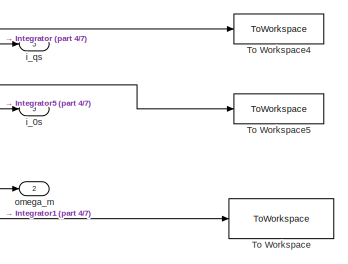
[diagram: root canvas - part 1/7, top right region]
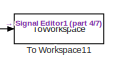
[diagram: root canvas - part 2/7, top left region]
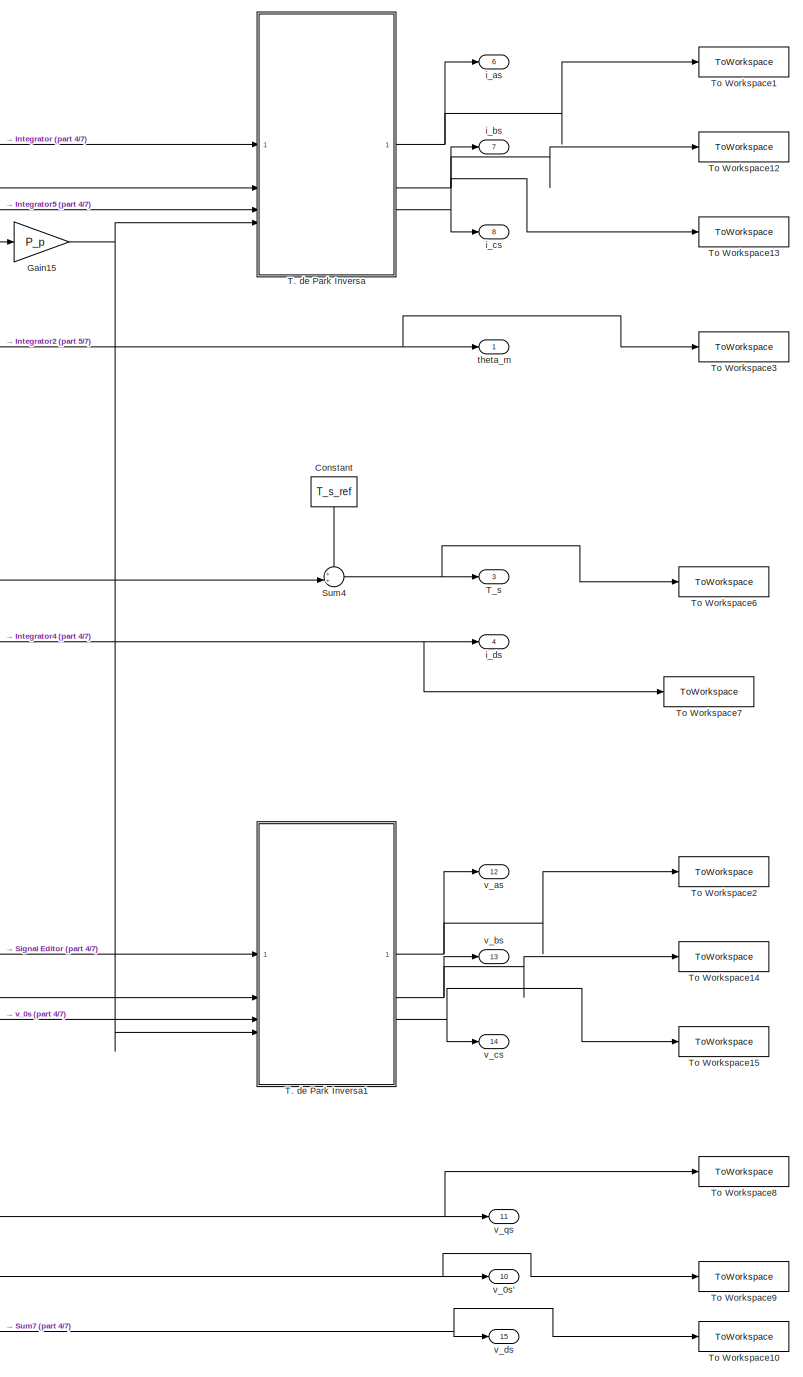
[diagram: root canvas - part 3/7, right side, full height]
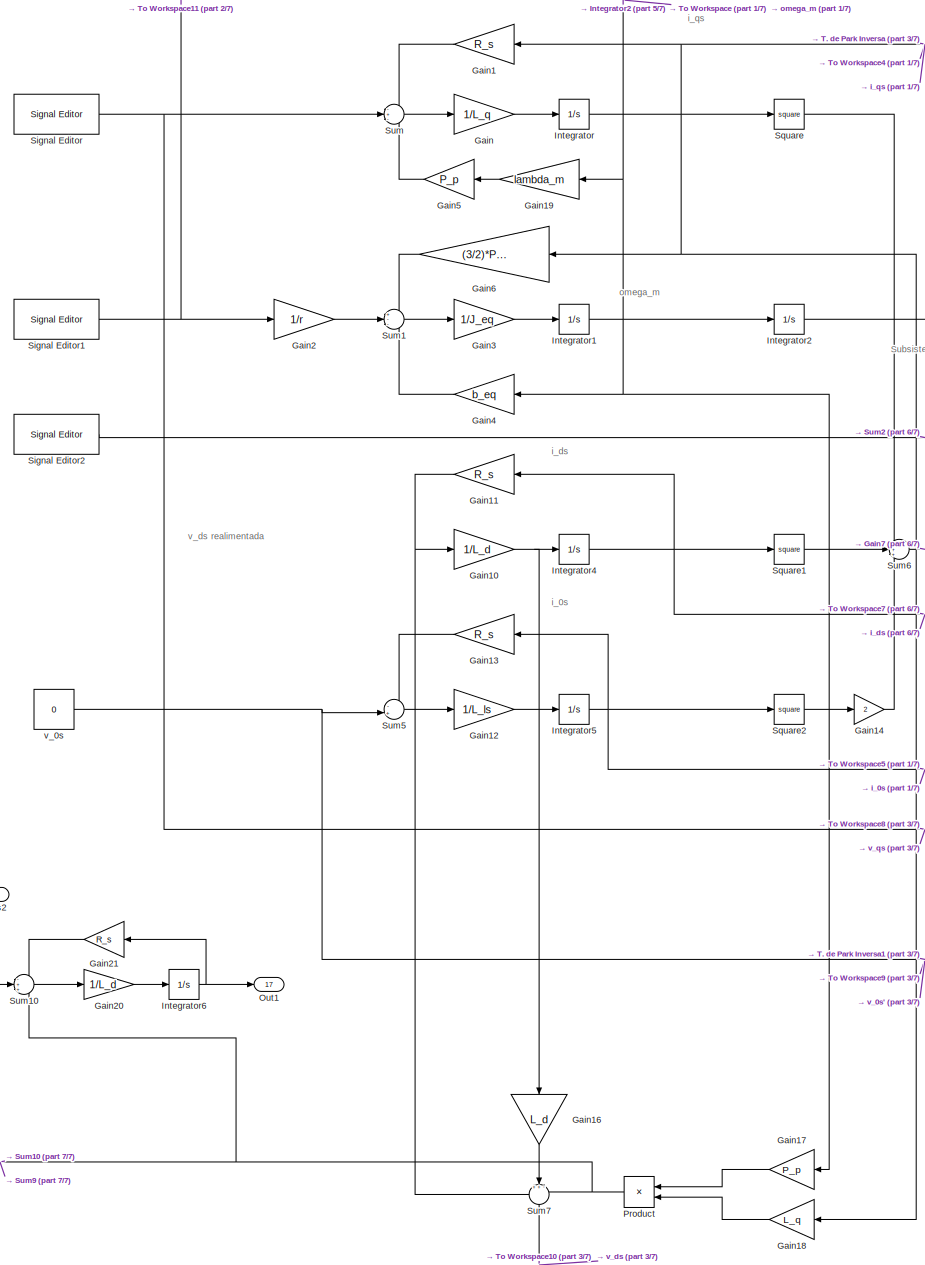
[diagram: root canvas - part 4/7, left side, full height]
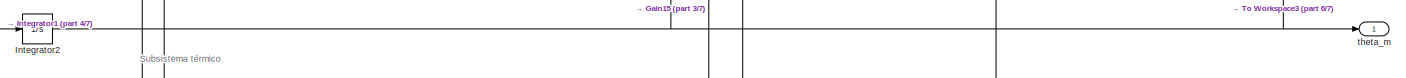
[diagram: root canvas - part 5/7, central region]
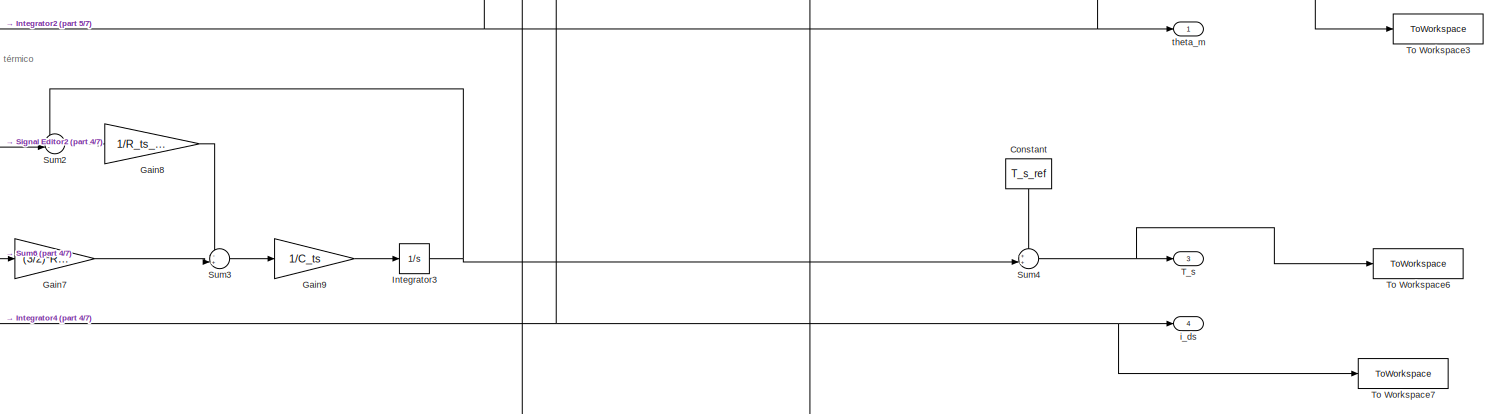
[diagram: root canvas - part 6/7, middle right region]
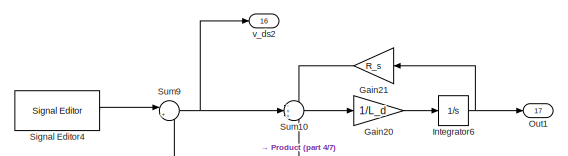
[diagram: root canvas - part 7/7, bottom left region]
MODEL slx_2c4f7311a23b
KIND model
CONFIG AbsTol = auto
CONFIG EnableMultiTasking = off
CONFIG FixedStep = auto
CONFIG MaxStep = 1e-4
CONFIG MinStep = auto
CONFIG RelTol = 1e-3
CONFIG SampleTimeConstraint = Unconstrained
CONFIG SolverName = VariableStepAuto
CONFIG StartTime = 0.0
CONFIG StopTime = 1
BLOCK [Constant] Constant
  NameLocation = left
  Value = T_s_ref
BLOCK [Gain] Gain
  Gain = 1/L_q
BLOCK [Gain] Gain1
  Gain = R_s
BLOCK [Gain] Gain10
  Gain = 1/L_d
BLOCK [Gain] Gain11
  Gain = R_s
BLOCK [Gain] Gain12
  Gain = 1/L_ls
BLOCK [Gain] Gain13
  Gain = R_s
BLOCK [Gain] Gain14
  Gain = 2
BLOCK [Gain] Gain15
  Gain = P_p
BLOCK [Gain] Gain16
  Gain = L_d
  NameLocation = left
BLOCK [Gain] Gain17
  Gain = P_p
  NameLocation = top
BLOCK [Gain] Gain18
  Gain = L_q
  NameLocation = top
BLOCK [Gain] Gain19
  Gain = lambda_m
BLOCK [Gain] Gain2
  Gain = 1/r
BLOCK [Gain] Gain20
  Gain = 1/L_d
BLOCK [Gain] Gain21
  Gain = R_s
BLOCK [Gain] Gain3
  Gain = 1/J_eq
BLOCK [Gain] Gain4
  Gain = b_eq
BLOCK [Gain] Gain5
  Gain = P_p
BLOCK [Gain] Gain6
  Gain = (3/2)*P_p*lambda_m
BLOCK [Gain] Gain7
  Gain = (3/2)*R_s
BLOCK [Gain] Gain8
  Gain = 1/R_ts_amb
BLOCK [Gain] Gain9
  Gain = 1/C_ts
BLOCK [Integrator] Integrator
BLOCK [Integrator] Integrator1
BLOCK [Integrator] Integrator2
BLOCK [Integrator] Integrator3
BLOCK [Integrator] Integrator4
  InitialCondition = 0.5
BLOCK [Integrator] Integrator5
BLOCK [Integrator] Integrator6
BLOCK [Outport] Out1
  Port = 17
BLOCK [Product] Product
BLOCK [Reference] Signal Editor  REF=SignalEditorBlockLib/Signal Editor
  LibrarySourceBlock = simulink/Sources/Signal Editor
  SourceBlock = SignalEditorBlockLib/Signal Editor
  SourceType = SignalEditor
  UserDataPersistent = on
BLOCK [Reference] Signal Editor1  REF=SignalEditorBlockLib/Signal Editor
  LibrarySourceBlock = simulink/Sources/Signal Editor
  SourceBlock = SignalEditorBlockLib/Signal Editor
  SourceType = SignalEditor
  UserDataPersistent = on
BLOCK [Reference] Signal Editor2  REF=SignalEditorBlockLib/Signal Editor
  LibrarySourceBlock = simulink/Sources/Signal Editor
  SourceBlock = SignalEditorBlockLib/Signal Editor
  SourceType = SignalEditor
  UserDataPersistent = on
BLOCK [Reference] Signal Editor4  REF=SignalEditorBlockLib/Signal Editor
  LibrarySourceBlock = simulink/Sources/Signal Editor
  SourceBlock = SignalEditorBlockLib/Signal Editor
  SourceType = SignalEditor
  UserDataPersistent = on
BLOCK [Math] Square
  Operator = square
BLOCK [Math] Square1
  Operator = square
BLOCK [Math] Square2
  Operator = square
BLOCK [Sum] Sum
  Inputs = -+-
BLOCK [Sum] Sum1
  Inputs = +--
BLOCK [Sum] Sum10
  Inputs = -++
BLOCK [Sum] Sum2
  Inputs = +-|
BLOCK [Sum] Sum3
  Inputs = -+|
BLOCK [Sum] Sum4
  Inputs = ++|
BLOCK [Sum] Sum5
  Inputs = -+|
BLOCK [Sum] Sum6
  Inputs = +++
BLOCK [Sum] Sum7
  Inputs = ++-
  NameLocation = left
BLOCK [Sum] Sum9
  Inputs = |+-
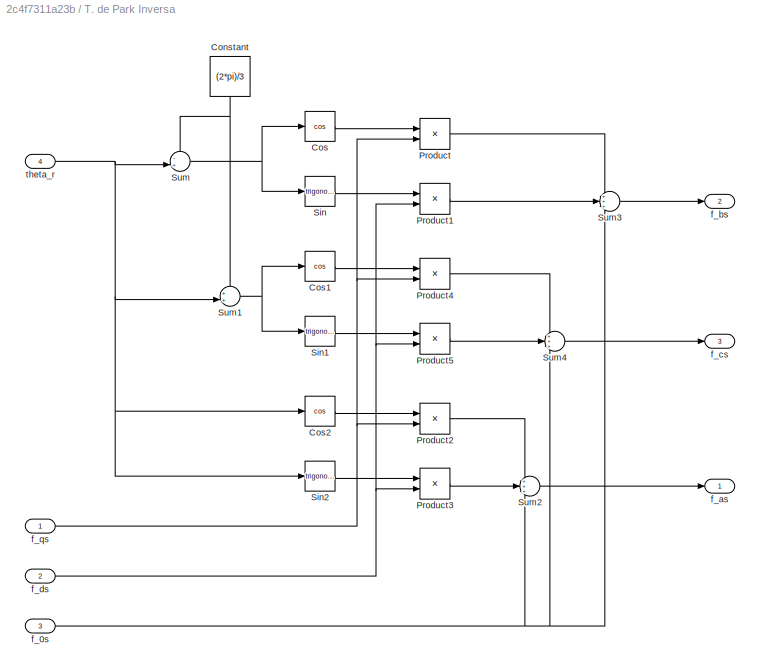
BLOCK [SubSystem] T. de Park Inversa
BLOCK [Constant] T. de Park Inversa/Constant
  NameLocation = left
  Value = (2*pi)/3
BLOCK [Trigonometry] T. de Park Inversa/Cos
  Operator = cos
BLOCK [Trigonometry] T. de Park Inversa/Cos1
  Operator = cos
BLOCK [Trigonometry] T. de Park Inversa/Cos2
  Operator = cos
BLOCK [Product] T. de Park Inversa/Product
BLOCK [Product] T. de Park Inversa/Product1
BLOCK [Product] T. de Park Inversa/Product2
BLOCK [Product] T. de Park Inversa/Product3
BLOCK [Product] T. de Park Inversa/Product4
BLOCK [Product] T. de Park Inversa/Product5
BLOCK [Trigonometry] T. de Park Inversa/Sin
BLOCK [Trigonometry] T. de Park Inversa/Sin1
BLOCK [Trigonometry] T. de Park Inversa/Sin2
BLOCK [Sum] T. de Park Inversa/Sum
  Inputs = -+|
BLOCK [Sum] T. de Park Inversa/Sum1
  Inputs = ++|
BLOCK [Sum] T. de Park Inversa/Sum2
  Inputs = +++
BLOCK [Sum] T. de Park Inversa/Sum3
  Inputs = +++
BLOCK [Sum] T. de Park Inversa/Sum4
  Inputs = +++
BLOCK [Inport] T. de Park Inversa/f_0s
  Port = 3
BLOCK [Outport] T. de Park Inversa/f_as
BLOCK [Outport] T. de Park Inversa/f_bs
  Port = 2
BLOCK [Outport] T. de Park Inversa/f_cs
  Port = 3
BLOCK [Inport] T. de Park Inversa/f_ds
  Port = 2
BLOCK [Inport] T. de Park Inversa/f_qs
BLOCK [Inport] T. de Park Inversa/theta_r
  Port = 4
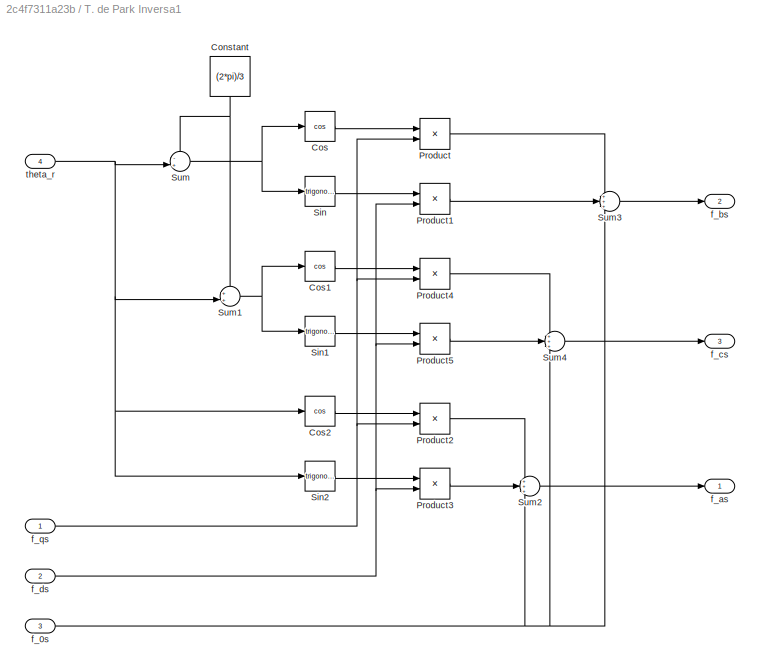
BLOCK [SubSystem] T. de Park Inversa1
BLOCK [Constant] T. de Park Inversa1/Constant
  NameLocation = left
  Value = (2*pi)/3
BLOCK [Trigonometry] T. de Park Inversa1/Cos
  Operator = cos
BLOCK [Trigonometry] T. de Park Inversa1/Cos1
  Operator = cos
BLOCK [Trigonometry] T. de Park Inversa1/Cos2
  Operator = cos
BLOCK [Product] T. de Park Inversa1/Product
BLOCK [Product] T. de Park Inversa1/Product1
BLOCK [Product] T. de Park Inversa1/Product2
BLOCK [Product] T. de Park Inversa1/Product3
BLOCK [Product] T. de Park Inversa1/Product4
BLOCK [Product] T. de Park Inversa1/Product5
BLOCK [Trigonometry] T. de Park Inversa1/Sin
BLOCK [Trigonometry] T. de Park Inversa1/Sin1
BLOCK [Trigonometry] T. de Park Inversa1/Sin2
BLOCK [Sum] T. de Park Inversa1/Sum
  Inputs = -+|
BLOCK [Sum] T. de Park Inversa1/Sum1
  Inputs = ++|
BLOCK [Sum] T. de Park Inversa1/Sum2
  Inputs = +++
BLOCK [Sum] T. de Park Inversa1/Sum3
  Inputs = +++
BLOCK [Sum] T. de Park Inversa1/Sum4
  Inputs = +++
BLOCK [Inport] T. de Park Inversa1/f_0s
  Port = 3
BLOCK [Outport] T. de Park Inversa1/f_as
BLOCK [Outport] T. de Park Inversa1/f_bs
  Port = 2
BLOCK [Outport] T. de Park Inversa1/f_cs
  Port = 3
BLOCK [Inport] T. de Park Inversa1/f_ds
  Port = 2
BLOCK [Inport] T. de Park Inversa1/f_qs
BLOCK [Inport] T. de Park Inversa1/theta_r
  Port = 4
BLOCK [Outport] T_s
  Port = 3
BLOCK [ToWorkspace] To Workspace
  FixptAsFi = on
  MaxDataPoints = inf
  SampleTime = -1
  SaveFormat = Timeseries
  VariableName = omega_m_plot
BLOCK [ToWorkspace] To Workspace1
  FixptAsFi = on
  MaxDataPoints = inf
  SampleTime = -1
  SaveFormat = Timeseries
  VariableName = corriente_a
BLOCK [ToWorkspace] To Workspace10
  FixptAsFi = on
  MaxDataPoints = inf
  SampleTime = -1
  SaveFormat = Timeseries
  VariableName = tension_d
BLOCK [ToWorkspace] To Workspace11
  FixptAsFi = on
  MaxDataPoints = inf
  SampleTime = -1
  SaveFormat = Timeseries
  VariableName = torque
BLOCK [ToWorkspace] To Workspace12
  FixptAsFi = on
  MaxDataPoints = inf
  SampleTime = -1
  SaveFormat = Timeseries
  VariableName = corriente_b
BLOCK [ToWorkspace] To Workspace13
  FixptAsFi = on
  MaxDataPoints = inf
  SampleTime = -1
  SaveFormat = Timeseries
  VariableName = corriente_c
BLOCK [ToWorkspace] To Workspace14
  FixptAsFi = on
  MaxDataPoints = inf
  SampleTime = -1
  SaveFormat = Timeseries
  VariableName = tension_b
BLOCK [ToWorkspace] To Workspace15
  FixptAsFi = on
  MaxDataPoints = inf
  SampleTime = -1
  SaveFormat = Timeseries
  VariableName = tension_c
BLOCK [ToWorkspace] To Workspace2
  FixptAsFi = on
  MaxDataPoints = inf
  SampleTime = -1
  SaveFormat = Timeseries
  VariableName = tension_a
BLOCK [ToWorkspace] To Workspace3
  FixptAsFi = on
  MaxDataPoints = inf
  SampleTime = -1
  SaveFormat = Timeseries
  VariableName = theta_m_plot
BLOCK [ToWorkspace] To Workspace4
  FixptAsFi = on
  MaxDataPoints = inf
  SampleTime = -1
  SaveFormat = Timeseries
  VariableName = corriente_q
BLOCK [ToWorkspace] To Workspace5
  FixptAsFi = on
  MaxDataPoints = inf
  SampleTime = -1
  SaveFormat = Timeseries
  VariableName = corriente_0
BLOCK [ToWorkspace] To Workspace6
  FixptAsFi = on
  MaxDataPoints = inf
  SampleTime = -1
  SaveFormat = Timeseries
  VariableName = temp_s
BLOCK [ToWorkspace] To Workspace7
  FixptAsFi = on
  MaxDataPoints = inf
  SampleTime = -1
  SaveFormat = Timeseries
  VariableName = corriente_d
BLOCK [ToWorkspace] To Workspace8
  FixptAsFi = on
  MaxDataPoints = inf
  SampleTime = -1
  SaveFormat = Timeseries
  VariableName = tension_s
BLOCK [ToWorkspace] To Workspace9
  FixptAsFi = on
  MaxDataPoints = inf
  SampleTime = -1
  SaveFormat = Timeseries
  VariableName = tension_o
BLOCK [Outport] i_0s
  Port = 9
BLOCK [Outport] i_as
  Port = 6
BLOCK [Outport] i_bs
  Port = 7
BLOCK [Outport] i_cs
  Port = 8
BLOCK [Outport] i_ds
  Port = 4
BLOCK [Outport] i_qs
  Port = 5
BLOCK [Outport] omega_m
  Port = 2
BLOCK [Outport] theta_m
BLOCK [Constant] v_0s
  NameLocation = top
  Value = 0
BLOCK [Outport] v_0s'
  Port = 10
BLOCK [Outport] v_as
  Port = 12
BLOCK [Outport] v_bs
  Port = 13
BLOCK [Outport] v_cs
  Port = 14
BLOCK [Outport] v_ds
  Port = 15
BLOCK [Outport] v_ds2
  Port = 16
BLOCK [Outport] v_qs
  Port = 11
ANNOTATION (root): Subsistema térmico
ANNOTATION (root): i_0s
ANNOTATION (root): i_ds
ANNOTATION (root): i_qs
ANNOTATION (root): omega_m
ANNOTATION (root): v_ds realimentada
LINE Constant:1 -> Sum4:1
NET Gain10:1 -> Gain16:1, Integrator4:1
NET Gain11:1 -> Gain10:1, Sum7:1
LINE Gain12:1 -> Integrator5:1
LINE Gain13:1 -> Sum5:1
LINE Gain14:1 -> Sum6:3
NET Gain15:1 -> T. de Park Inversa1:4, T. de Park Inversa:4
LINE Gain16:1 -> Sum7:2
LINE Gain17:1 -> Product:1
LINE Gain18:1 -> Product:2
LINE Gain19:1 -> Gain5:1
LINE Gain1:1 -> Sum:1
LINE Gain20:1 -> Integrator6:1
LINE Gain21:1 -> Sum10:1
LINE Gain2:1 -> Sum1:2
LINE Gain3:1 -> Integrator1:1
LINE Gain4:1 -> Sum1:3
LINE Gain5:1 -> Sum:3
LINE Gain6:1 -> Sum1:1
LINE Gain7:1 -> Sum3:2
LINE Gain8:1 -> Sum3:1
LINE Gain9:1 -> Integrator3:1
LINE Gain:1 -> Integrator:1
NET Integrator1:1 -> Gain17:1, Gain19:1, Gain4:1, Integrator2:1, To Workspace:1, omega_m:1
NET Integrator2:1 -> Gain15:1, To Workspace3:1, theta_m:1
NET Integrator3:1 -> Sum2:1, Sum4:2
NET Integrator4:1 -> Gain11:1, Square1:1, T. de Park Inversa:2, To Workspace7:1, i_ds:1
NET Integrator5:1 -> Gain13:1, Square2:1, T. de Park Inversa:3, To Workspace5:1, i_0s:1
NET Integrator6:1 -> Gain21:1, Out1:1
NET Integrator:1 -> Gain18:1, Gain1:1, Gain6:1, Square:1, T. de Park Inversa:1, To Workspace4:1, i_qs:1
NET Product:1 -> Sum10:3, Sum7:3, Sum9:2
NET Signal Editor1:1 -> Gain2:1, To Workspace11:1
LINE Signal Editor2:1 -> Sum2:2
LINE Signal Editor4:1 -> Sum9:1
NET Signal Editor:1 -> Sum:2, T. de Park Inversa1:1, To Workspace8:1, v_qs:1
LINE Square1:1 -> Sum6:2
LINE Square2:1 -> Gain14:1
LINE Square:1 -> Sum6:1
LINE Sum10:1 -> Gain20:1
LINE Sum1:1 -> Gain3:1
LINE Sum2:1 -> Gain8:1
LINE Sum3:1 -> Gain9:1
NET Sum4:1 -> T_s:1, To Workspace6:1
LINE Sum5:1 -> Gain12:1
LINE Sum6:1 -> Gain7:1
NET Sum7:1 -> T. de Park Inversa1:2, To Workspace10:1, v_ds:1
NET Sum9:1 -> Sum10:2, v_ds2:1
LINE Sum:1 -> Gain:1
NET T. de Park Inversa/Constant:1 -> T. de Park Inversa/Sum1:1, T. de Park Inversa/Sum:1
LINE T. de Park Inversa/Cos1:1 -> T. de Park Inversa/Product4:1
LINE T. de Park Inversa/Cos2:1 -> T. de Park Inversa/Product2:1
LINE T. de Park Inversa/Cos:1 -> T. de Park Inversa/Product:1
LINE T. de Park Inversa/Product1:1 -> T. de Park Inversa/Sum3:2
LINE T. de Park Inversa/Product2:1 -> T. de Park Inversa/Sum2:1
LINE T. de Park Inversa/Product3:1 -> T. de Park Inversa/Sum2:2
LINE T. de Park Inversa/Product4:1 -> T. de Park Inversa/Sum4:1
LINE T. de Park Inversa/Product5:1 -> T. de Park Inversa/Sum4:2
LINE T. de Park Inversa/Product:1 -> T. de Park Inversa/Sum3:1
LINE T. de Park Inversa/Sin1:1 -> T. de Park Inversa/Product5:1
LINE T. de Park Inversa/Sin2:1 -> T. de Park Inversa/Product3:1
LINE T. de Park Inversa/Sin:1 -> T. de Park Inversa/Product1:1
NET T. de Park Inversa/Sum1:1 -> T. de Park Inversa/Cos1:1, T. de Park Inversa/Sin1:1
LINE T. de Park Inversa/Sum2:1 -> T. de Park Inversa/f_as:1
LINE T. de Park Inversa/Sum3:1 -> T. de Park Inversa/f_bs:1
LINE T. de Park Inversa/Sum4:1 -> T. de Park Inversa/f_cs:1
NET T. de Park Inversa/Sum:1 -> T. de Park Inversa/Cos:1, T. de Park Inversa/Sin:1
NET T. de Park Inversa/f_0s:1 -> T. de Park Inversa/Sum2:3, T. de Park Inversa/Sum3:3, T. de Park Inversa/Sum4:3
NET T. de Park Inversa/f_ds:1 -> T. de Park Inversa/Product1:2, T. de Park Inversa/Product3:2, T. de Park Inversa/Product5:2
NET T. de Park Inversa/f_qs:1 -> T. de Park Inversa/Product2:2, T. de Park Inversa/Product4:2, T. de Park Inversa/Product:2
NET T. de Park Inversa/theta_r:1 -> T. de Park Inversa/Cos2:1, T. de Park Inversa/Sin2:1, T. de Park Inversa/Sum1:2, T. de Park Inversa/Sum:2
NET T. de Park Inversa1/Constant:1 -> T. de Park Inversa1/Sum1:1, T. de Park Inversa1/Sum:1
LINE T. de Park Inversa1/Cos1:1 -> T. de Park Inversa1/Product4:1
LINE T. de Park Inversa1/Cos2:1 -> T. de Park Inversa1/Product2:1
LINE T. de Park Inversa1/Cos:1 -> T. de Park Inversa1/Product:1
LINE T. de Park Inversa1/Product1:1 -> T. de Park Inversa1/Sum3:2
LINE T. de Park Inversa1/Product2:1 -> T. de Park Inversa1/Sum2:1
LINE T. de Park Inversa1/Product3:1 -> T. de Park Inversa1/Sum2:2
LINE T. de Park Inversa1/Product4:1 -> T. de Park Inversa1/Sum4:1
LINE T. de Park Inversa1/Product5:1 -> T. de Park Inversa1/Sum4:2
LINE T. de Park Inversa1/Product:1 -> T. de Park Inversa1/Sum3:1
LINE T. de Park Inversa1/Sin1:1 -> T. de Park Inversa1/Product5:1
LINE T. de Park Inversa1/Sin2:1 -> T. de Park Inversa1/Product3:1
LINE T. de Park Inversa1/Sin:1 -> T. de Park Inversa1/Product1:1
NET T. de Park Inversa1/Sum1:1 -> T. de Park Inversa1/Cos1:1, T. de Park Inversa1/Sin1:1
LINE T. de Park Inversa1/Sum2:1 -> T. de Park Inversa1/f_as:1
LINE T. de Park Inversa1/Sum3:1 -> T. de Park Inversa1/f_bs:1
LINE T. de Park Inversa1/Sum4:1 -> T. de Park Inversa1/f_cs:1
NET T. de Park Inversa1/Sum:1 -> T. de Park Inversa1/Cos:1, T. de Park Inversa1/Sin:1
NET T. de Park Inversa1/f_0s:1 -> T. de Park Inversa1/Sum2:3, T. de Park Inversa1/Sum3:3, T. de Park Inversa1/Sum4:3
NET T. de Park Inversa1/f_ds:1 -> T. de Park Inversa1/Product1:2, T. de Park Inversa1/Product3:2, T. de Park Inversa1/Product5:2
NET T. de Park Inversa1/f_qs:1 -> T. de Park Inversa1/Product2:2, T. de Park Inversa1/Product4:2, T. de Park Inversa1/Product:2
NET T. de Park Inversa1/theta_r:1 -> T. de Park Inversa1/Cos2:1, T. de Park Inversa1/Sin2:1, T. de Park Inversa1/Sum1:2, T. de Park Inversa1/Sum:2
NET T. de Park Inversa1:1 -> To Workspace2:1, v_as:1
NET T. de Park Inversa1:2 -> To Workspace14:1, v_bs:1
NET T. de Park Inversa1:3 -> To Workspace15:1, v_cs:1
NET T. de Park Inversa:1 -> To Workspace1:1, i_as:1
NET T. de Park Inversa:2 -> To Workspace12:1, i_bs:1
NET T. de Park Inversa:3 -> To Workspace13:1, i_cs:1
NET v_0s:1 -> Sum5:2, T. de Park Inversa1:3, To Workspace9:1, v_0s':1
note: NET lines group one-source signal fan-out (src -> all destinations, sorted); 1:1 wires keep LINE
